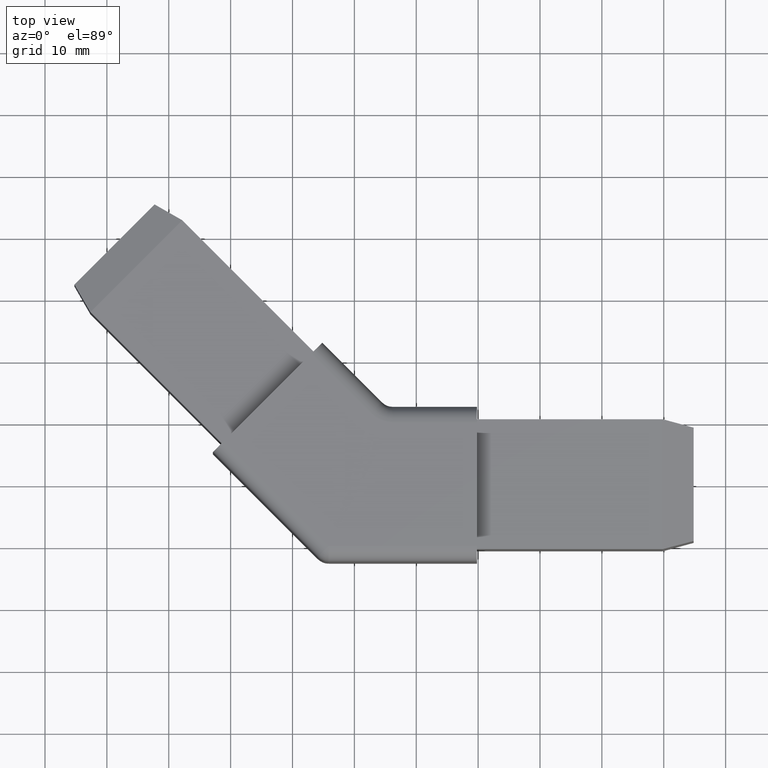
[diagram: clean part render]
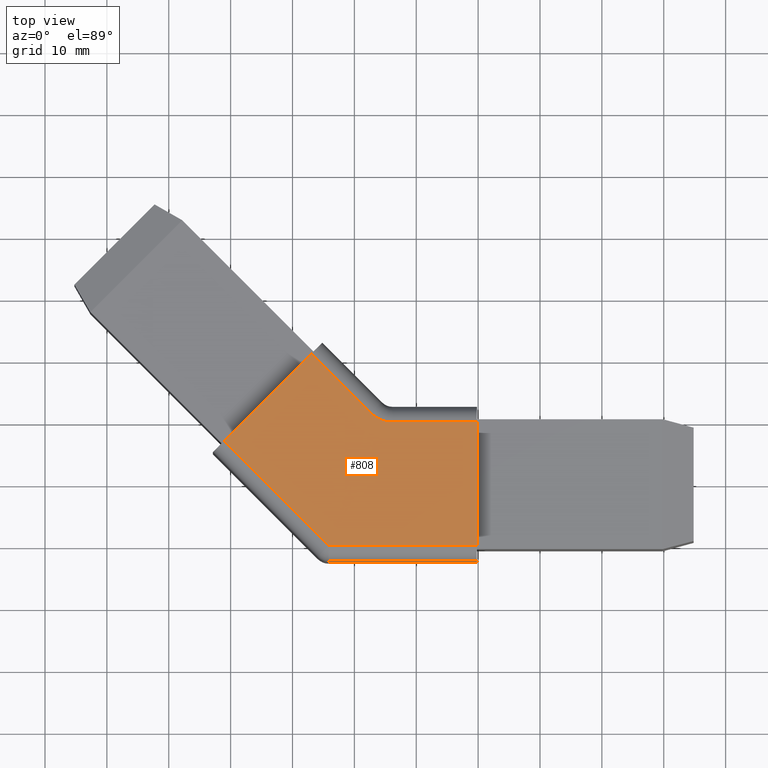
[diagram: same view with one face highlighted and labeled with its STEP entity id]
A machine part, top view. The second image highlights one B-rep face of the part: STEP entity #808.
In plain terms, the highlighted planar face has unit normal (0, 0, 1).
Its self-contained STEP definition (entity closure, byte-faithful):
#35=CIRCLE('',#875,5.);
#90=FACE_OUTER_BOUND('',#140,.T.);
#140=EDGE_LOOP('',(#669,#670,#671,#672,#673,#674,#675));
#217=LINE('',#1293,#307);
#220=LINE('',#1300,#310);
#229=LINE('',#1325,#319);
#230=LINE('',#1330,#320);
#232=LINE('',#1337,#322);
#233=LINE('',#1338,#323);
#307=VECTOR('',#1051,10.);
#310=VECTOR('',#1058,10.);
#319=VECTOR('',#1081,10.);
#320=VECTOR('',#1086,10.);
#322=VECTOR('',#1096,10.);
#323=VECTOR('',#1097,10.);
#379=VERTEX_POINT('',#1279);
#381=VERTEX_POINT('',#1283);
#383=VERTEX_POINT('',#1291);
#384=VERTEX_POINT('',#1296);
#391=VERTEX_POINT('',#1318);
#394=VERTEX_POINT('',#1323);
#396=VERTEX_POINT('',#1328);
#471=EDGE_CURVE('',#381,#379,#35,.T.);
#475=EDGE_CURVE('',#383,#381,#217,.T.);
#479=EDGE_CURVE('',#379,#384,#220,.T.);
#491=EDGE_CURVE('',#394,#391,#229,.T.);
#493=EDGE_CURVE('',#396,#394,#230,.T.);
#497=EDGE_CURVE('',#383,#391,#232,.T.);
#498=EDGE_CURVE('',#396,#384,#233,.T.);
#669=ORIENTED_EDGE('',*,*,#475,.F.);
#670=ORIENTED_EDGE('',*,*,#497,.T.);
#671=ORIENTED_EDGE('',*,*,#491,.F.);
#672=ORIENTED_EDGE('',*,*,#493,.F.);
#673=ORIENTED_EDGE('',*,*,#498,.T.);
#674=ORIENTED_EDGE('',*,*,#479,.F.);
#675=ORIENTED_EDGE('',*,*,#471,.F.);
#764=PLANE('',#893);
#808=ADVANCED_FACE('',(#90),#764,.T.);
#875=AXIS2_PLACEMENT_3D('',#1285,#1041,#1042);
#893=AXIS2_PLACEMENT_3D('',#1336,#1094,#1095);
#1041=DIRECTION('center_axis',(0.,0.,1.));
#1042=DIRECTION('ref_axis',(-0.38268343236509,-0.923879532511287,0.));
#1051=DIRECTION('',(0.707106781186547,-0.707106781186548,0.));
#1058=DIRECTION('',(1.,0.,0.));
#1081=DIRECTION('',(-0.707106781186547,0.707106781186548,0.));
#1086=DIRECTION('',(-1.,0.,0.));
#1094=DIRECTION('center_axis',(0.,0.,1.));
#1095=DIRECTION('ref_axis',(1.,0.,0.));
#1096=DIRECTION('',(-0.707106781186548,-0.707106781186547,0.));
#1097=DIRECTION('',(0.,1.,0.));
#1279=CARTESIAN_POINT('',(6.21320343559643,10.,25.));
#1283=CARTESIAN_POINT('',(2.67766952966369,11.4644660940673,25.));
#1285=CARTESIAN_POINT('Origin',(6.21320343559643,15.,25.));
#1291=CARTESIAN_POINT('',(-6.94590991159544,21.0880455353264,25.));
#1293=CARTESIAN_POINT('',(4.79005765158965,9.35207797214131,25.));
#1296=CARTESIAN_POINT('',(19.823,10.,25.));
#1300=CARTESIAN_POINT('',(10.5485007397411,10.,25.));
#1318=CARTESIAN_POINT('',(-21.0880455353264,6.94590991159546,25.));
#1323=CARTESIAN_POINT('',(-4.14213562373096,-10.,25.));
#1325=CARTESIAN_POINT('',(-14.5299842162877,0.387848592556741,25.));
#1328=CARTESIAN_POINT('',(19.823,-10.,25.));
#1330=CARTESIAN_POINT('',(-1.43406707212442,-10.,25.));
#1336=CARTESIAN_POINT('Origin',(1.27400147948212,3.07571165024912,25.));
#1337=CARTESIAN_POINT('',(-22.8558124882928,5.17814295862909,25.));
#1338=CARTESIAN_POINT('',(19.823,12.5,25.));